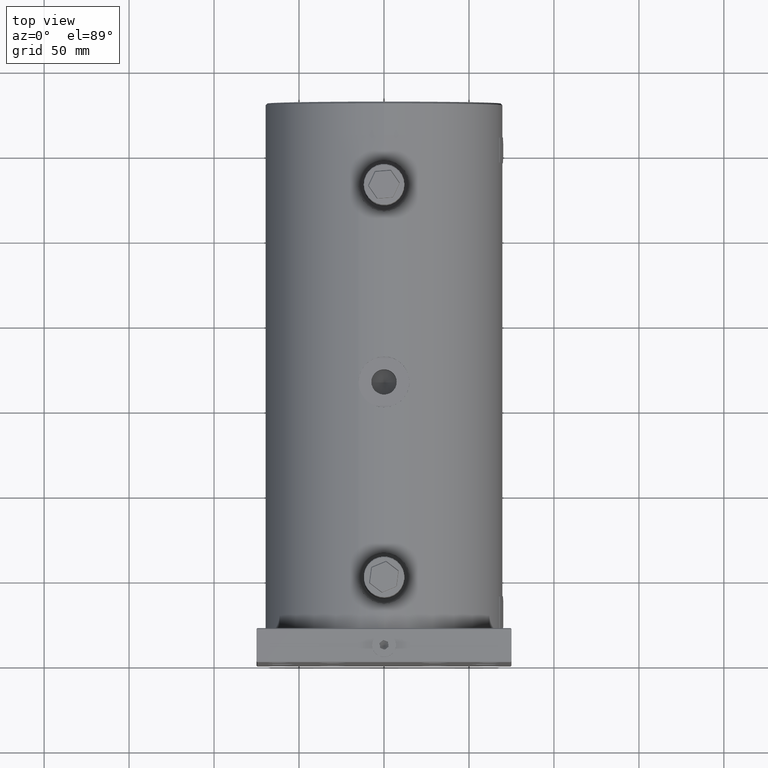
[diagram: clean part render]
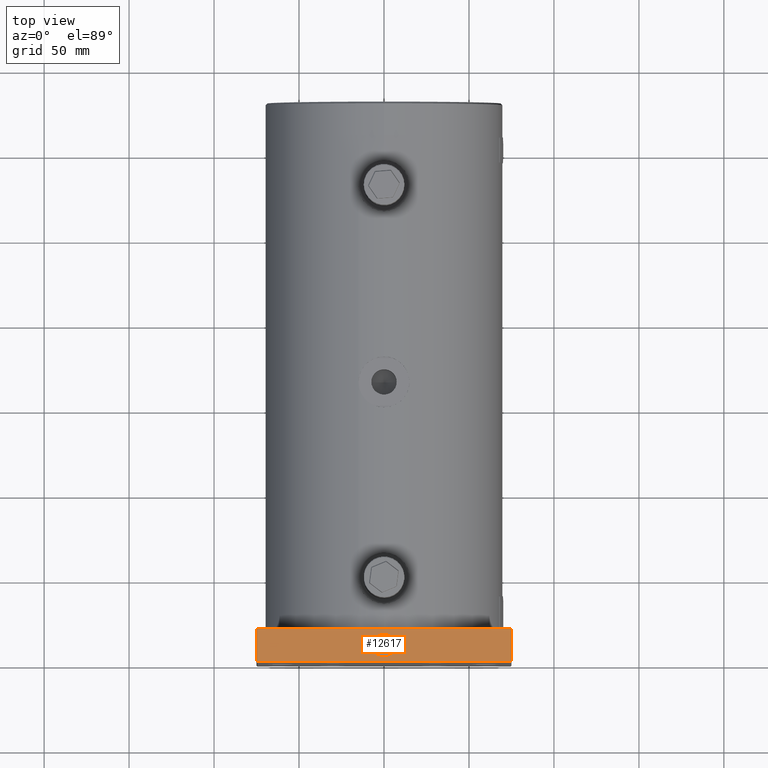
[diagram: same view with one face highlighted and labeled with its STEP entity id]
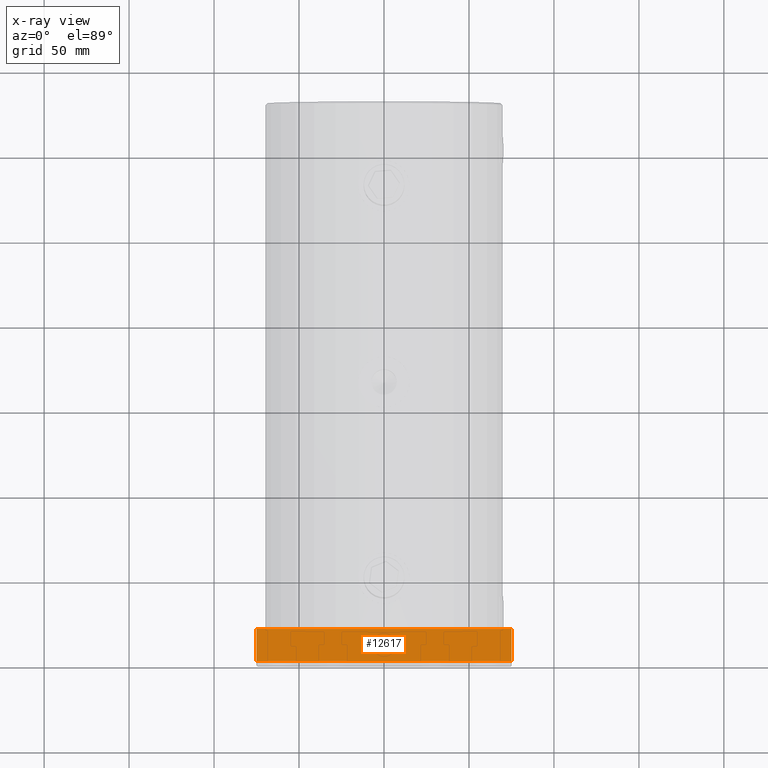
[diagram: x-ray of the same camera — body ghosted, the highlighted face saturated]
A machine part, top view. The second image highlights one B-rep face of the part: STEP entity #12617.
The next image is the same camera in x-ray: the body ghosted, the highlighted face saturated — about 0% of this face is hidden behind the body in this view.
In plain terms, the highlighted planar face has unit normal (-0, 0, -1).
Its self-contained STEP definition (entity closure, byte-faithful):
#1389 = EDGE_CURVE ( 'NONE', #27297, #4935, #5162, .T. ) ;
#1637 = VERTEX_POINT ( 'NONE', #41397 ) ;
#1896 = CARTESIAN_POINT ( 'NONE',  ( -75.00000000000000000, 20.00000000000000000, 75.00000000000000000 ) ) ;
#1904 = ORIENTED_EDGE ( 'NONE', *, *, #17445, .F. ) ;
#2035 = VECTOR ( 'NONE', #35576, 1000.000000000000000 ) ;
#2084 = EDGE_LOOP ( 'NONE', ( #1904, #23270 ) ) ;
#3239 = DIRECTION ( 'NONE',  ( -1.000000000000000000, 0.0000000000000000000, 9.251858538542969100E-017 ) ) ;
#3554 = CARTESIAN_POINT ( 'NONE',  ( 6.938893903907230000E-015, 10.00000000000000000, 75.00000000000000000 ) ) ;
#4289 = ORIENTED_EDGE ( 'NONE', *, *, #1389, .T. ) ;
#4935 = VERTEX_POINT ( 'NONE', #10337 ) ;
#5162 = LINE ( 'NONE', #42853, #2035 ) ;
#8114 = ORIENTED_EDGE ( 'NONE', *, *, #12175, .F. ) ;
#8242 = LINE ( 'NONE', #16858, #26543 ) ;
#10234 = DIRECTION ( 'NONE',  ( -9.251858538542969100E-017, 0.0000000000000000000, -1.000000000000000000 ) ) ;
#10337 = CARTESIAN_POINT ( 'NONE',  ( 75.00000000000000000, 0.5000000000000000000, 75.00000000000000000 ) ) ;
#12175 = EDGE_CURVE ( 'NONE', #31051, #4935, #16872, .T. ) ;
#12617 = ADVANCED_FACE ( 'NONE', ( #25686, #33051 ), #27068, .F. ) ;
#13749 = CARTESIAN_POINT ( 'NONE',  ( -75.00000000000000000, 20.00000000000000000, 75.00000000000000000 ) ) ;
#13930 = DIRECTION ( 'NONE',  ( 0.0000000000000000000, 0.0000000000000000000, 1.000000000000000000 ) ) ;
#14473 = AXIS2_PLACEMENT_3D ( 'NONE', #35694, #25135, #22197 ) ;
#14774 = DIRECTION ( 'NONE',  ( 0.0000000000000000000, -1.000000000000000000, 0.0000000000000000000 ) ) ;
#15585 = EDGE_CURVE ( 'NONE', #36715, #27297, #34944, .T. ) ;
#16858 = CARTESIAN_POINT ( 'NONE',  ( -75.00000000000000000, 19.50000000000000000, 75.00000000000000000 ) ) ;
#16872 = LINE ( 'NONE', #34323, #28419 ) ;
#16916 = ORIENTED_EDGE ( 'NONE', *, *, #40012, .T. ) ;
#17445 = EDGE_CURVE ( 'NONE', #37048, #1637, #35913, .T. ) ;
#17904 = CARTESIAN_POINT ( 'NONE',  ( -75.00000000000000000, 19.50000000000000000, 75.00000000000000000 ) ) ;
#19101 = CARTESIAN_POINT ( 'NONE',  ( 75.00000000000000000, 19.50000000000000000, 75.00000000000000000 ) ) ;
#20585 = CARTESIAN_POINT ( 'NONE',  ( -75.00000000000000000, 0.5000000000000000000, 75.00000000000000000 ) ) ;
#20798 = DIRECTION ( 'NONE',  ( 0.0000000000000000000, -1.000000000000000000, 0.0000000000000000000 ) ) ;
#22197 = DIRECTION ( 'NONE',  ( 1.000000000000000000, 0.0000000000000000000, 0.0000000000000000000 ) ) ;
#23095 = EDGE_LOOP ( 'NONE', ( #27973, #4289, #8114, #16916 ) ) ;
#23270 = ORIENTED_EDGE ( 'NONE', *, *, #40559, .F. ) ;
#23997 = DIRECTION ( 'NONE',  ( 1.000000000000000000, 0.0000000000000000000, 0.0000000000000000000 ) ) ;
#25135 = DIRECTION ( 'NONE',  ( 0.0000000000000000000, 0.0000000000000000000, 1.000000000000000000 ) ) ;
#25686 = FACE_BOUND ( 'NONE', #2084, .T. ) ;
#26543 = VECTOR ( 'NONE', #27104, 1000.000000000000000 ) ;
#27068 = PLANE ( 'NONE',  #39554 ) ;
#27104 = DIRECTION ( 'NONE',  ( -1.000000000000000000, 0.0000000000000000000, 9.251858538542969100E-017 ) ) ;
#27297 = VERTEX_POINT ( 'NONE', #20585 ) ;
#27973 = ORIENTED_EDGE ( 'NONE', *, *, #15585, .T. ) ;
#28032 = AXIS2_PLACEMENT_3D ( 'NONE', #3554, #13930, #23997 ) ;
#28419 = VECTOR ( 'NONE', #20798, 1000.000000000000000 ) ;
#31051 = VERTEX_POINT ( 'NONE', #19101 ) ;
#33051 = FACE_OUTER_BOUND ( 'NONE', #23095, .T. ) ;
#33859 = CARTESIAN_POINT ( 'NONE',  ( 4.283000000000007500, 10.00000000000000000, 75.00000000000000000 ) ) ;
#34323 = CARTESIAN_POINT ( 'NONE',  ( 75.00000000000000000, 20.00000000000000000, 75.00000000000000000 ) ) ;
#34944 = LINE ( 'NONE', #1896, #41231 ) ;
#35576 = DIRECTION ( 'NONE',  ( 1.000000000000000000, 0.0000000000000000000, -9.251858538542969100E-017 ) ) ;
#35694 = CARTESIAN_POINT ( 'NONE',  ( 6.938893903907230000E-015, 10.00000000000000000, 75.00000000000000000 ) ) ;
#35913 = CIRCLE ( 'NONE', #28032, 4.283000000000000400 ) ;
#36715 = VERTEX_POINT ( 'NONE', #17904 ) ;
#37048 = VERTEX_POINT ( 'NONE', #33859 ) ;
#39554 = AXIS2_PLACEMENT_3D ( 'NONE', #13749, #10234, #3239 ) ;
#40012 = EDGE_CURVE ( 'NONE', #31051, #36715, #8242, .T. ) ;
#40559 = EDGE_CURVE ( 'NONE', #1637, #37048, #40680, .T. ) ;
#40680 = CIRCLE ( 'NONE', #14473, 4.283000000000000400 ) ;
#41231 = VECTOR ( 'NONE', #14774, 1000.000000000000000 ) ;
#41397 = CARTESIAN_POINT ( 'NONE',  ( -4.282999999999993300, 10.00000000000000000, 75.00000000000000000 ) ) ;
#42853 = CARTESIAN_POINT ( 'NONE',  ( -75.00000000000000000, 0.5000000000000000000, 75.00000000000000000 ) ) ;